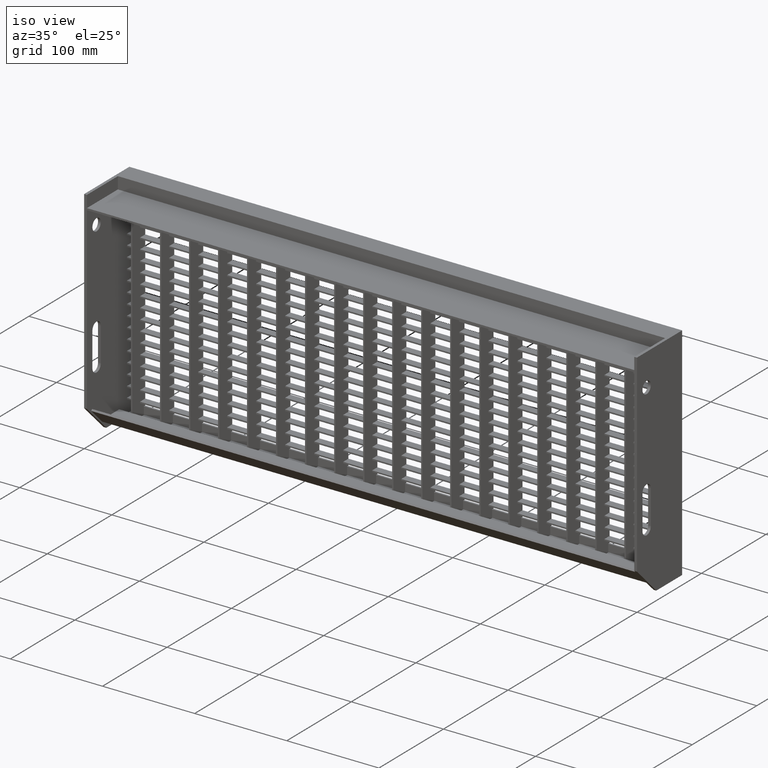
[diagram: clean part render]
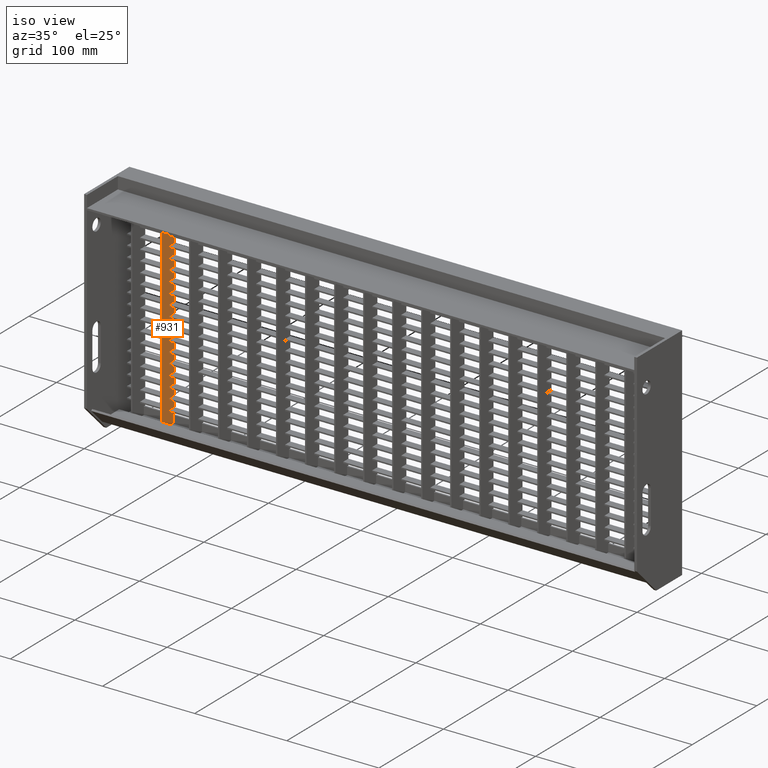
[diagram: same view with one face highlighted and labeled with its STEP entity id]
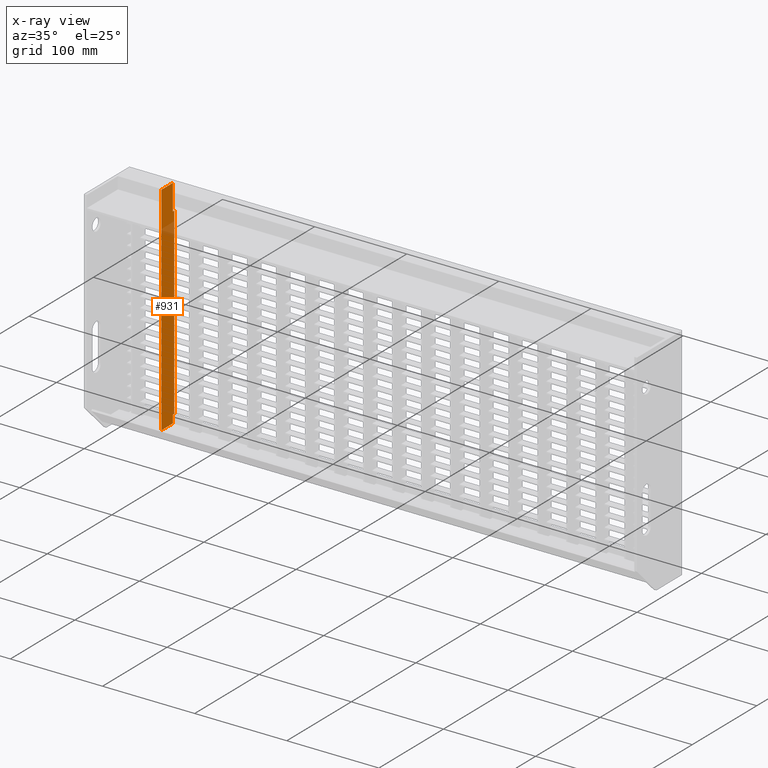
[diagram: x-ray of the same camera — body ghosted, the highlighted face saturated]
A machine part, iso view. The second image highlights one B-rep face of the part: STEP entity #931.
The next image is the same camera in x-ray: the body ghosted, the highlighted face saturated — about 4% of this face is hidden behind the body in this view.
In plain terms, the highlighted planar face has unit normal (-1, 0, 0).
Its self-contained STEP definition (entity closure, byte-faithful):
#97 = ORIENTED_EDGE ( 'NONE', *, *, #12953, .T. ) ;
#251 = CARTESIAN_POINT ( 'NONE',  ( -251.2500000000000300, 70.00000000000000000, -29.99999999999999300 ) ) ;
#738 = VERTEX_POINT ( 'NONE', #21190 ) ;
#931 = ADVANCED_FACE ( 'NONE', ( #3225 ), #24263, .F. ) ;
#1299 = DIRECTION ( 'NONE',  ( 0.0000000000000000000, 1.000000000000000000, 0.0000000000000000000 ) ) ;
#1333 = EDGE_CURVE ( 'NONE', #20264, #2751, #17894, .T. ) ;
#1512 = CARTESIAN_POINT ( 'NONE',  ( -251.2500000000000300, 70.00000000000000000, -29.99999999999999300 ) ) ;
#1686 = DIRECTION ( 'NONE',  ( 0.0000000000000000000, 0.0000000000000000000, 1.000000000000000000 ) ) ;
#1834 = EDGE_LOOP ( 'NONE', ( #97, #2091, #24662, #3346, #20481, #22803, #22417, #25261 ) ) ;
#2091 = ORIENTED_EDGE ( 'NONE', *, *, #16068, .T. ) ;
#2661 = CARTESIAN_POINT ( 'NONE',  ( -251.2500000000000300, 50.00000000000000000, -238.0000000000000000 ) ) ;
#2751 = VERTEX_POINT ( 'NONE', #14434 ) ;
#3224 = VERTEX_POINT ( 'NONE', #16800 ) ;
#3225 = FACE_OUTER_BOUND ( 'NONE', #1834, .T. ) ;
#3346 = ORIENTED_EDGE ( 'NONE', *, *, #13532, .T. ) ;
#3746 = CARTESIAN_POINT ( 'NONE',  ( -251.2500000000000300, 68.00000000000000000, -29.99999999999999300 ) ) ;
#4118 = LINE ( 'NONE', #251, #19771 ) ;
#4592 = DIRECTION ( 'NONE',  ( -1.000000000000000000, 0.0000000000000000000, 0.0000000000000000000 ) ) ;
#4698 = LINE ( 'NONE', #1512, #20354 ) ;
#4719 = EDGE_CURVE ( 'NONE', #2751, #738, #4698, .T. ) ;
#6370 = CARTESIAN_POINT ( 'NONE',  ( -251.2500000000000300, 68.00000000000000000, -1.999999999999991300 ) ) ;
#7811 = DIRECTION ( 'NONE',  ( 0.0000000000000000000, 0.0000000000000000000, 1.000000000000000000 ) ) ;
#7913 = CARTESIAN_POINT ( 'NONE',  ( -251.2500000000000300, 0.0000000000000000000, 0.0000000000000000000 ) ) ;
#8216 = LINE ( 'NONE', #19036, #24525 ) ;
#9087 = CARTESIAN_POINT ( 'NONE',  ( -251.2500000000000300, 50.00000000000000000, -1.999999999999993600 ) ) ;
#9357 = CARTESIAN_POINT ( 'NONE',  ( -251.2500000000000300, 67.99999999999995700, -229.4999999999999700 ) ) ;
#9528 = VECTOR ( 'NONE', #13093, 1000.000000000000000 ) ;
#11071 = EDGE_CURVE ( 'NONE', #23942, #19244, #18225, .T. ) ;
#12199 = VECTOR ( 'NONE', #23606, 1000.000000000000000 ) ;
#12953 = EDGE_CURVE ( 'NONE', #738, #3224, #4118, .T. ) ;
#13093 = DIRECTION ( 'NONE',  ( 0.0000000000000000000, 0.0000000000000000000, -1.000000000000000000 ) ) ;
#13193 = DIRECTION ( 'NONE',  ( 0.0000000000000000000, 1.000000000000000000, 0.0000000000000000000 ) ) ;
#13328 = CARTESIAN_POINT ( 'NONE',  ( -251.2500000000000300, 50.00000000000000000, -238.0000000000000000 ) ) ;
#13442 = LINE ( 'NONE', #2661, #18859 ) ;
#13532 = EDGE_CURVE ( 'NONE', #19244, #22522, #16229, .T. ) ;
#13941 = VECTOR ( 'NONE', #1686, 1000.000000000000000 ) ;
#14166 = EDGE_CURVE ( 'NONE', #23091, #20264, #8216, .T. ) ;
#14434 = CARTESIAN_POINT ( 'NONE',  ( -251.2500000000000300, 70.00000000000000000, -229.4999999999999700 ) ) ;
#15135 = CARTESIAN_POINT ( 'NONE',  ( -251.2500000000000300, 67.99999999999995700, -229.4999999999999700 ) ) ;
#15771 = DIRECTION ( 'NONE',  ( -0.0000000000000000000, -0.0000000000000000000, 1.000000000000000000 ) ) ;
#16035 = CARTESIAN_POINT ( 'NONE',  ( -251.2500000000000300, 50.00000000000000000, -1.999999999999993600 ) ) ;
#16068 = EDGE_CURVE ( 'NONE', #3224, #23942, #19363, .T. ) ;
#16229 = LINE ( 'NONE', #9087, #9528 ) ;
#16657 = DIRECTION ( 'NONE',  ( 0.0000000000000000000, -1.000000000000000000, 0.0000000000000000000 ) ) ;
#16800 = CARTESIAN_POINT ( 'NONE',  ( -251.2500000000000300, 68.00000000000000000, -29.99999999999999300 ) ) ;
#17894 = LINE ( 'NONE', #15135, #22717 ) ;
#18225 = LINE ( 'NONE', #19548, #12199 ) ;
#18859 = VECTOR ( 'NONE', #13193, 1000.000000000000000 ) ;
#19036 = CARTESIAN_POINT ( 'NONE',  ( -251.2500000000000300, 67.99999999999997200, -238.0000000000000000 ) ) ;
#19244 = VERTEX_POINT ( 'NONE', #16035 ) ;
#19363 = LINE ( 'NONE', #3746, #13941 ) ;
#19548 = CARTESIAN_POINT ( 'NONE',  ( -251.2500000000000300, 68.00000000000000000, -1.999999999999991300 ) ) ;
#19771 = VECTOR ( 'NONE', #16657, 1000.000000000000000 ) ;
#20173 = EDGE_CURVE ( 'NONE', #22522, #23091, #13442, .T. ) ;
#20264 = VERTEX_POINT ( 'NONE', #9357 ) ;
#20342 = CARTESIAN_POINT ( 'NONE',  ( -251.2500000000000300, 67.99999999999997200, -238.0000000000000000 ) ) ;
#20354 = VECTOR ( 'NONE', #15771, 1000.000000000000000 ) ;
#20481 = ORIENTED_EDGE ( 'NONE', *, *, #20173, .T. ) ;
#21190 = CARTESIAN_POINT ( 'NONE',  ( -251.2500000000000300, 70.00000000000000000, -29.99999999999999300 ) ) ;
#22417 = ORIENTED_EDGE ( 'NONE', *, *, #1333, .T. ) ;
#22522 = VERTEX_POINT ( 'NONE', #13328 ) ;
#22717 = VECTOR ( 'NONE', #1299, 1000.000000000000000 ) ;
#22803 = ORIENTED_EDGE ( 'NONE', *, *, #14166, .T. ) ;
#23084 = DIRECTION ( 'NONE',  ( 0.0000000000000000000, -1.632680918566405200E-015, 1.000000000000000000 ) ) ;
#23091 = VERTEX_POINT ( 'NONE', #20342 ) ;
#23606 = DIRECTION ( 'NONE',  ( 0.0000000000000000000, -1.000000000000000000, -1.204669080539449300E-016 ) ) ;
#23942 = VERTEX_POINT ( 'NONE', #6370 ) ;
#24263 = PLANE ( 'NONE',  #24395 ) ;
#24395 = AXIS2_PLACEMENT_3D ( 'NONE', #7913, #4592, #7811 ) ;
#24525 = VECTOR ( 'NONE', #23084, 1000.000000000000000 ) ;
#24662 = ORIENTED_EDGE ( 'NONE', *, *, #11071, .T. ) ;
#25261 = ORIENTED_EDGE ( 'NONE', *, *, #4719, .T. ) ;